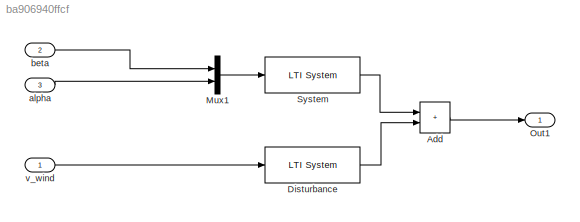
MODEL slx_ba906940ffcf
KIND model
CONFIG AbsTol = auto
CONFIG EnableMultiTasking = off
CONFIG FixedStep = auto
CONFIG MaxStep = auto
CONFIG MinStep = auto
CONFIG RelTol = 1e-3
CONFIG SampleTimeConstraint = Unconstrained
CONFIG SolverName = VariableStepAuto
CONFIG StartTime = 0.0
CONFIG StopTime = 10.0
BLOCK [Sum] Add
  IconShape = rectangular
BLOCK [Reference] Disturbance  REF=cstblocks/LTI System
  SourceBlock = cstblocks/LTI System
  SourceType = LTI Block
BLOCK [Mux] Mux1
  DisplayOption = bar
  Inputs = 2
BLOCK [Outport] Out1
BLOCK [Reference] System  REF=cstblocks/LTI System
  SourceBlock = cstblocks/LTI System
  SourceType = LTI Block
BLOCK [Inport] alpha
  Port = 3
BLOCK [Inport] beta
  Port = 2
BLOCK [Inport] v_wind
LINE Add:1 -> Out1:1
LINE Disturbance:1 -> Add:2
LINE Mux1:1 -> System:1
LINE System:1 -> Add:1
LINE alpha:1 -> Mux1:2
LINE beta:1 -> Mux1:1
LINE v_wind:1 -> Disturbance:1
